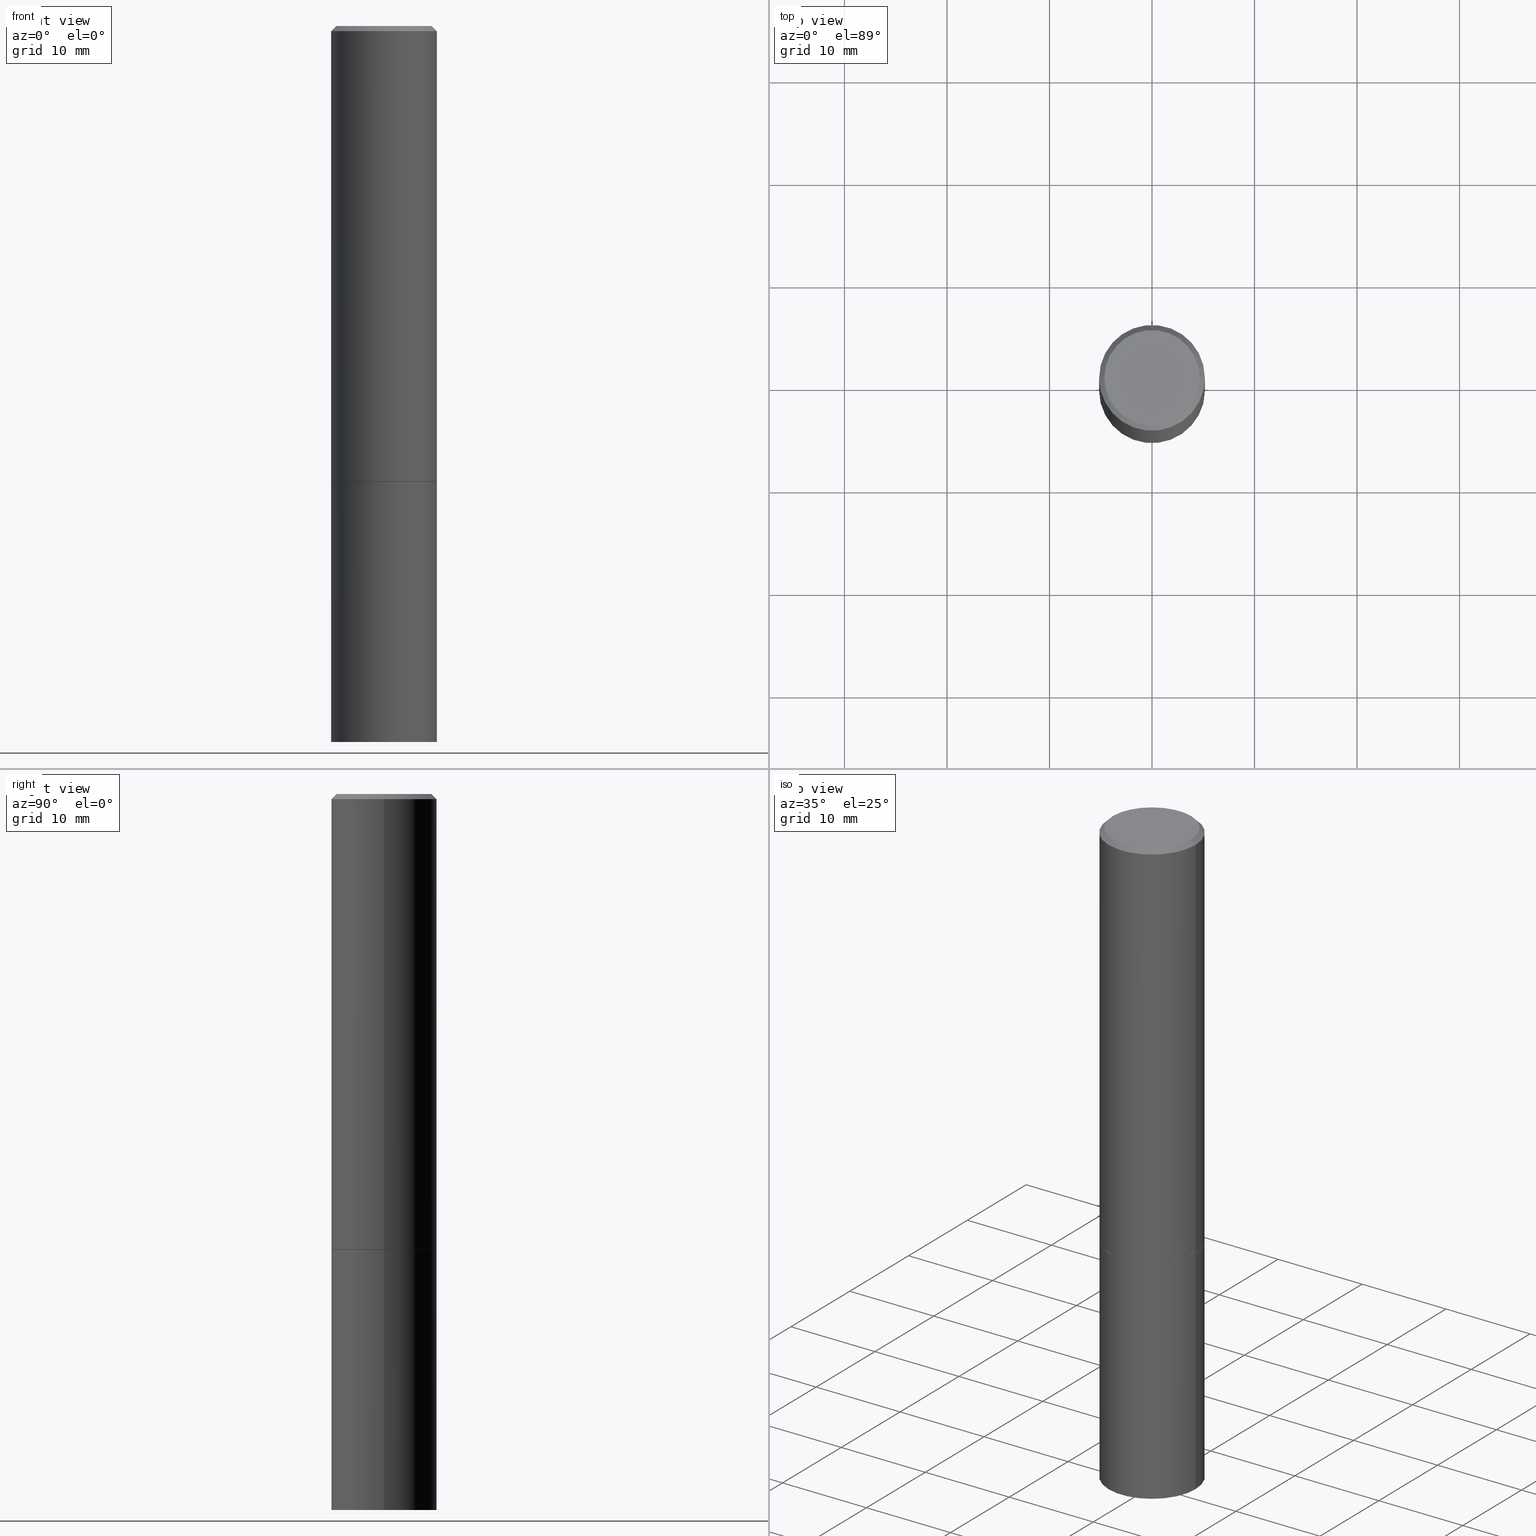
[diagram: canonical four-view strip — front | top / right | iso, engineering-drawing reading convention]
A machine part, canonical four-view strip (front | top / right | iso — engineering-drawing reading convention). The complete STEP part file that produces these views, byte-faithful:
ISO-10303-21;
HEADER;
FILE_DESCRIPTION (( 'STEP AP203' ),
    '1' );
FILE_NAME ('30016.STEP',
    '2023-03-21T20:20:45',
    ( '' ),
    ( '' ),
    'SwSTEP 2.0',
    'SolidWorks 2022',
    '' );
FILE_SCHEMA (( 'CONFIG_CONTROL_DESIGN' ));
ENDSEC;

DATA;
#1 = DIRECTION ( 'NONE',  ( 1.000000000000000000, 0.000000000000000000, 0.000000000000000000 ) ) ;
#2 = APPROVAL_PERSON_ORGANIZATION ( #140, #378, #333 ) ;
#3 = CONICAL_SURFACE ( 'NONE', #215, 751.2258538476739886, 1.518436449235074148 ) ;
#4 = DIRECTION ( 'NONE',  ( 1.000000000000000000, -6.982962677686269077E-15, 0.000000000000000000 ) ) ;
#5 = PERSON_AND_ORGANIZATION_ROLE ( 'design_owner' ) ;
#6 = DATE_AND_TIME ( #283, #125 ) ;
#7 = CIRCLE ( 'NONE', #346, 0.2021000000000000019 ) ;
#8 = COORDINATED_UNIVERSAL_TIME_OFFSET ( 5, 0, .BEHIND. ) ;
#9 = ORIENTED_EDGE ( 'NONE', *, *, #135, .F. ) ;
#10 = ORIENTED_EDGE ( 'NONE', *, *, #214, .T. ) ;
#11 = DATE_TIME_ROLE ( 'classification_date' ) ;
#12 = DIRECTION ( 'NONE',  ( -2.445468806185136597E-29, 3.491481338843145583E-15, 1.000000000000000000 ) ) ;
#13 = CARTESIAN_POINT ( 'NONE',  ( -0.2031000000000000028, -6.412720716068313768E-15, -1.750000000000000000 ) ) ;
#14 = AXIS2_PLACEMENT_3D ( 'NONE', #183, #245, #27 ) ;
#15 = AXIS2_PLACEMENT_3D ( 'NONE', #44, #12, #175 ) ;
#16 = CARTESIAN_POINT ( 'NONE',  ( -0.2021000000000000019, -4.668787019656119386E-15, -1.750000000000000222 ) ) ;
#17 = VERTEX_POINT ( 'NONE', #365 ) ;
#18 = DATE_AND_TIME ( #287, #285 ) ;
#19 = LINE ( 'NONE', #141, #278 ) ;
#20 = ORIENTED_EDGE ( 'NONE', *, *, #268, .T. ) ;
#21 = CYLINDRICAL_SURFACE ( 'NONE', #15, 0.2031000000000000028 ) ;
#22 = CARTESIAN_POINT ( 'NONE',  ( 6.725039217009124520E-29, -9.601573681818649859E-15, -2.750000000000000000 ) ) ;
#23 = ADVANCED_FACE ( 'NONE', ( #119 ), #301, .F. ) ;
#24 = CIRCLE ( 'NONE', #154, 0.2031000000000000028 ) ;
#25 = DIRECTION ( 'NONE',  ( 0.9986295347545742773, -7.033825938271997912E-15, -0.05233595624293643084 ) ) ;
#26 = ADVANCED_FACE ( 'NONE', ( #216 ), #185, .T. ) ;
#27 = DIRECTION ( 'NONE',  ( -1.000000000000000000, 6.982962677686266711E-15, 0.000000000000000000 ) ) ;
#28 = DIRECTION ( 'NONE',  ( -0.7071067811864267805, 7.493145998869918709E-15, 0.7071067811866682540 ) ) ;
#29 = DIRECTION ( 'NONE',  ( -2.445468806185136877E-29, 3.491481338843145188E-15, 1.000000000000000000 ) ) ;
#30 = LINE ( 'NONE', #160, #228 ) ;
#31 = DIRECTION ( 'NONE',  ( -2.445468806185136597E-29, 3.491481338843145583E-15, 1.000000000000000000 ) ) ;
#32 = AXIS2_PLACEMENT_3D ( 'NONE', #70, #321, #171 ) ;
#33 =( NAMED_UNIT ( * ) SI_UNIT ( $, .STERADIAN. ) SOLID_ANGLE_UNIT ( ) );
#34 = FACE_OUTER_BOUND ( 'NONE', #50, .T. ) ;
#35 = EDGE_LOOP ( 'NONE', ( #194, #10, #325, #234 ) ) ;
#36 = CYLINDRICAL_SURFACE ( 'NONE', #222, 0.2030999999999999195 ) ;
#37 = APPROVAL ( #315, 'UNSPECIFIED' ) ;
#38 = ORIENTED_EDGE ( 'NONE', *, *, #223, .T. ) ;
#39 = SECURITY_CLASSIFICATION_LEVEL ( 'unclassified' ) ;
#40 = ORIENTED_EDGE ( 'NONE', *, *, #387, .T. ) ;
#41 = DATE_AND_TIME ( #170, #145 ) ;
#42 = EDGE_LOOP ( 'NONE', ( #357, #199, #259, #349 ) ) ;
#43 = PERSON_AND_ORGANIZATION_ROLE ( 'classification_officer' ) ;
#44 = CARTESIAN_POINT ( 'NONE',  ( 0.000000000000000000, 0.000000000000000000, 0.000000000000000000 ) ) ;
#45 = DIRECTION ( 'NONE',  ( 2.445468806185136597E-29, -3.491481338843145583E-15, -1.000000000000000000 ) ) ;
#46 = DIRECTION ( 'NONE',  ( 0.7071067811864267805, -2.468850131080992517E-15, 0.7071067811866682540 ) ) ;
#47 = VECTOR ( 'NONE', #25, 39.37007874015748143 ) ;
#48 = AXIS2_PLACEMENT_3D ( 'NONE', #343, #67, #248 ) ;
#49 = DIRECTION ( 'NONE',  ( 1.000000000000000000, -6.982962677686269866E-15, 0.000000000000000000 ) ) ;
#50 = EDGE_LOOP ( 'NONE', ( #318, #166, #348, #142 ) ) ;
#51 = APPROVAL_DATE_TIME ( #6, #37 ) ;
#52 = EDGE_LOOP ( 'NONE', ( #9, #279, #329 ) ) ;
#53 = DIRECTION ( 'NONE',  ( 1.000000000000000000, -6.982962677686266711E-15, 0.000000000000000000 ) ) ;
#54 = CC_DESIGN_DATE_AND_TIME_ASSIGNMENT ( #377, #326, ( #311 ) ) ;
#55 = LINE ( 'NONE', #179, #47 ) ;
#56 = ADVANCED_FACE ( 'NONE', ( #88 ), #243, .T. ) ;
#57 = CIRCLE ( 'NONE', #250, 0.2031000000000000028 ) ;
#58 = LINE ( 'NONE', #156, #389 ) ;
#59 = ADVANCED_BREP_SHAPE_REPRESENTATION ( '30016', ( #117, #246, #358 ), #79 ) ;
#60 = DIRECTION ( 'NONE',  ( 1.000000000000000000, -6.982962677686265922E-15, 4.876176775795935793E-29 ) ) ;
#61 = DIRECTION ( 'NONE',  ( -1.000000000000000000, 6.982962677686265922E-15, -4.876176775795935793E-29 ) ) ;
#62 = DIRECTION ( 'NONE',  ( 1.000000000000000000, -6.982962677686265922E-15, 4.876176775795935793E-29 ) ) ;
#63 = ADVANCED_FACE ( 'NONE', ( #366 ), #92, .T. ) ;
#64 = EDGE_CURVE ( 'NONE', #256, #201, #7, .T. ) ;
#65 = DIRECTION ( 'NONE',  ( -2.445468806185136597E-29, 3.491481338843145583E-15, 1.000000000000000000 ) ) ;
#66 = VECTOR ( 'NONE', #46, 39.37007874015748143 ) ;
#67 = DIRECTION ( 'NONE',  ( -2.445468806185136597E-29, 3.491481338843145583E-15, 1.000000000000000000 ) ) ;
#68 = ORIENTED_EDGE ( 'NONE', *, *, #155, .F. ) ;
#69 = FACE_OUTER_BOUND ( 'NONE', #52, .T. ) ;
#70 = CARTESIAN_POINT ( 'NONE',  ( 0.000000000000000000, 0.000000000000000000, 0.000000000000000000 ) ) ;
#71 = ORIENTED_EDGE ( 'NONE', *, *, #254, .F. ) ;
#72 = APPROVAL_DATE_TIME ( #18, #298 ) ;
#73 = EDGE_LOOP ( 'NONE', ( #38, #252, #230, #133 ) ) ;
#74 = ORIENTED_EDGE ( 'NONE', *, *, #85, .F. ) ;
#75 = COORDINATED_UNIVERSAL_TIME_OFFSET ( 5, 0, .BEHIND. ) ;
#76 = CARTESIAN_POINT ( 'NONE',  ( 0.2021000000000000019, -7.521349100135901010E-15, -1.750000000000000222 ) ) ;
#77 = CARTESIAN_POINT ( 'NONE',  ( -0.1830999999999998185, 1.313495279672785236E-15, -9.063697641761069382E-30 ) ) ;
#78 = DIRECTION ( 'NONE',  ( -2.445468806185136597E-29, 3.491481338843145583E-15, 1.000000000000000000 ) ) ;
#79 =( GEOMETRIC_REPRESENTATION_CONTEXT ( 3 ) GLOBAL_UNCERTAINTY_ASSIGNED_CONTEXT ( ( #295 ) ) GLOBAL_UNIT_ASSIGNED_CONTEXT ( ( #272, #105, #33 ) ) REPRESENTATION_CONTEXT ( 'NONE', 'WORKASPACE' ) );
#80 = PERSON_AND_ORGANIZATION ( #143, #266 ) ;
#81 = ADVANCED_FACE ( 'NONE', ( #210 ), #337, .F. ) ;
#82 = VECTOR ( 'NONE', #330, 39.37007874015748143 ) ;
#83 = ORIENTED_EDGE ( 'NONE', *, *, #269, .F. ) ;
#84 = CARTESIAN_POINT ( 'NONE',  ( 6.725039217009124520E-29, -9.601573681818649859E-15, -2.750000000000000000 ) ) ;
#85 = EDGE_CURVE ( 'NONE', #256, #237, #186, .T. ) ;
#86 = DIRECTION ( 'NONE',  ( -1.000000000000000000, 6.982962677686266711E-15, 0.000000000000000000 ) ) ;
#87 = DIRECTION ( 'NONE',  ( -2.445468806185136877E-29, 3.491481338843145188E-15, 1.000000000000000000 ) ) ;
#88 = FACE_OUTER_BOUND ( 'NONE', #354, .T. ) ;
#89 = CIRCLE ( 'NONE', #331, 0.2031000000000000028 ) ;
#90 = CARTESIAN_POINT ( 'NONE',  ( 4.279570410823989044E-29, -6.110092342975505460E-15, -1.750000000000000222 ) ) ;
#91 = CARTESIAN_POINT ( 'NONE',  ( 4.279570410823988484E-29, -6.110092342975504671E-15, -1.750000000000000000 ) ) ;
#92 = CYLINDRICAL_SURFACE ( 'NONE', #307, 0.2031000000000000028 ) ;
#93 = CARTESIAN_POINT ( 'NONE',  ( 0.000000000000000000, 0.000000000000000000, 0.000000000000000000 ) ) ;
#94 = CARTESIAN_POINT ( 'NONE',  ( 1.278580466284353982E-15, 0.1830999999999998185, -6.392902331421793574E-16 ) ) ;
#95 = PLANE ( 'NONE',  #302 ) ;
#96 = LOCAL_TIME ( 16, 20, 45.00000000000000000, #226 ) ;
#97 = DIRECTION ( 'NONE',  ( 1.000000000000000000, -6.982962677686269866E-15, 0.000000000000000000 ) ) ;
#98 = CLOSED_SHELL ( 'NONE', ( #313, #253, #26, #102, #344, #56, #23, #81 ) ) ;
#99 = EDGE_CURVE ( 'NONE', #361, #319, #58, .T. ) ;
#100 = LENGTH_MEASURE_WITH_UNIT ( LENGTH_MEASURE( 0.02539999999999999897 ), #371 );
#101 = PRODUCT_RELATED_PRODUCT_CATEGORY ( 'detail', '', ( #132 ) ) ;
#102 = ADVANCED_FACE ( 'NONE', ( #390 ), #374, .T. ) ;
#103 = CARTESIAN_POINT ( 'NONE',  ( 4.279570410823988484E-29, -6.110092342975504671E-15, -1.750000000000000000 ) ) ;
#104 = EDGE_LOOP ( 'NONE', ( #68, #263, #386, #297 ) ) ;
#105 =( NAMED_UNIT ( * ) PLANE_ANGLE_UNIT ( ) SI_UNIT ( $, .RADIAN. ) );
#106 = VECTOR ( 'NONE', #87, 39.37007874015748143 ) ;
#107 = CARTESIAN_POINT ( 'NONE',  ( 0.000000000000000000, 0.000000000000000000, 0.000000000000000000 ) ) ;
#108 = DIRECTION ( 'NONE',  ( 1.000000000000000000, -6.982962677686265922E-15, 4.876176775795935793E-29 ) ) ;
#109 = ORIENTED_EDGE ( 'NONE', *, *, #328, .F. ) ;
#110 = AXIS2_PLACEMENT_3D ( 'NONE', #362, #382, #53 ) ;
#111 = EDGE_LOOP ( 'NONE', ( #71, #40, #225, #288 ) ) ;
#112 = EDGE_LOOP ( 'NONE', ( #376, #383, #168, #332 ) ) ;
#113 = PERSON_AND_ORGANIZATION_ROLE ( 'creator' ) ;
#114 = CC_DESIGN_APPROVAL ( #298, ( #184 ) ) ;
#115 = CC_DESIGN_PERSON_AND_ORGANIZATION_ASSIGNMENT ( #196, #43, ( #320 ) ) ;
#116 = VERTEX_POINT ( 'NONE', #335 ) ;
#117 = MANIFOLD_SOLID_BREP ( 'Body-Move/Copy2[1]', #261 ) ;
#118 = AXIS2_PLACEMENT_3D ( 'NONE', #103, #369, #97 ) ;
#119 = FACE_OUTER_BOUND ( 'NONE', #172, .T. ) ;
#120 = CYLINDRICAL_SURFACE ( 'NONE', #316, 0.2030999999999999195 ) ;
#121 = CARTESIAN_POINT ( 'NONE',  ( 4.279570410823989044E-29, -6.110092342975505460E-15, -1.750000000000000222 ) ) ;
#122 = DIRECTION ( 'NONE',  ( 0.000000000000000000, 0.000000000000000000, 1.000000000000000000 ) ) ;
#123 = CARTESIAN_POINT ( 'NONE',  ( 0.000000000000000000, 0.000000000000000000, 0.000000000000000000 ) ) ;
#124 = CC_DESIGN_PERSON_AND_ORGANIZATION_ASSIGNMENT ( #189, #5, ( #132 ) ) ;
#125 = LOCAL_TIME ( 16, 20, 45.00000000000000000, #255 ) ;
#126 = APPLICATION_PROTOCOL_DEFINITION ( 'international standard', 'config_control_design', 1994, #236 ) ;
#127 = VECTOR ( 'NONE', #29, 39.37007874015748143 ) ;
#128 = APPLICATION_PROTOCOL_DEFINITION ( 'international standard', 'config_control_design', 1994, #336 ) ;
#129 = CARTESIAN_POINT ( 'NONE',  ( 4.279570410823989044E-29, -6.110092342975505460E-15, -1.750000000000000222 ) ) ;
#130 = ORIENTED_EDGE ( 'NONE', *, *, #270, .F. ) ;
#131 = CARTESIAN_POINT ( 'NONE',  ( 0.2030999999999998085, -1.463196770124259971E-15, -0.02000000000000004552 ) ) ;
#132 = PRODUCT ( '30016', '30016', '', ( #220 ) ) ;
#133 = ORIENTED_EDGE ( 'NONE', *, *, #99, .F. ) ;
#134 = DIRECTION ( 'NONE',  ( -2.445468806185136597E-29, 3.491481338843145583E-15, 1.000000000000000000 ) ) ;
#135 = EDGE_CURVE ( 'NONE', #136, #361, #55, .T. ) ;
#136 = VERTEX_POINT ( 'NONE', #304 ) ;
#137 = APPROVAL_DATE_TIME ( #205, #378 ) ;
#138 = ORIENTED_EDGE ( 'NONE', *, *, #167, .F. ) ;
#139 = AXIS2_PLACEMENT_3D ( 'NONE', #84, #303, #229 ) ;
#140 = PERSON_AND_ORGANIZATION ( #143, #266 ) ;
#141 = CARTESIAN_POINT ( 'NONE',  ( -4.871854198842910760E-19, -9.564410284714797883E-15, -2.739355980027615711 ) ) ;
#142 = ORIENTED_EDGE ( 'NONE', *, *, #211, .F. ) ;
#143 = PERSON ( 'UNSPECIFIED', 'UNSPECIFIED', 'UNSPECIFIED', ('UNSPECIFIED'), ('UNSPECIFIED'), ('UNSPECIFIED') ) ;
#144 = ORIENTED_EDGE ( 'NONE', *, *, #135, .T. ) ;
#145 = LOCAL_TIME ( 16, 20, 45.00000000000000000, #75 ) ;
#146 = DESIGN_CONTEXT ( 'detailed design', #336, 'design' ) ;
#147 = DIRECTION ( 'NONE',  ( -2.445468806185136597E-29, 3.491481338843145583E-15, 1.000000000000000000 ) ) ;
#148 = CIRCLE ( 'NONE', #32, 0.1830999999999998185 ) ;
#149 = DIRECTION ( 'NONE',  ( -2.445468806185136597E-29, 3.491481338843145583E-15, 1.000000000000000000 ) ) ;
#150 = DIRECTION ( 'NONE',  ( 2.438088387897960049E-29, -3.491481338843145188E-15, -1.000000000000000000 ) ) ;
#151 = CARTESIAN_POINT ( 'NONE',  ( 0.000000000000000000, 0.000000000000000000, 0.000000000000000000 ) ) ;
#152 = DIRECTION ( 'NONE',  ( 1.000000000000000000, -6.982962677686269077E-15, 0.000000000000000000 ) ) ;
#153 = VECTOR ( 'NONE', #28, 39.37007874015748143 ) ;
#154 = AXIS2_PLACEMENT_3D ( 'NONE', #249, #224, #165 ) ;
#155 = EDGE_CURVE ( 'NONE', #116, #206, #235, .T. ) ;
#156 = CARTESIAN_POINT ( 'NONE',  ( 0.2031000000000000028, -1.418239719838080775E-15, 9.903515031641546145E-30 ) ) ;
#157 = FACE_OUTER_BOUND ( 'NONE', #176, .T. ) ;
#158 = DIRECTION ( 'NONE',  ( 0.7071067811865465735, -7.319954787623252890E-15, -0.7071067811865484609 ) ) ;
#159 = ADVANCED_FACE ( 'NONE', ( #384 ), #3, .F. ) ;
#160 = CARTESIAN_POINT ( 'NONE',  ( -0.2030999999999998085, 1.348410093061216294E-15, -0.02000000000000004552 ) ) ;
#161 = FACE_OUTER_BOUND ( 'NONE', #112, .T. ) ;
#162 = LINE ( 'NONE', #131, #352 ) ;
#163 = CIRCLE ( 'NONE', #262, 0.2021000000000000019 ) ;
#164 = APPROVAL_ROLE ( '' ) ;
#165 = DIRECTION ( 'NONE',  ( 1.000000000000000000, -6.982962677686264344E-15, 0.000000000000000000 ) ) ;
#166 = ORIENTED_EDGE ( 'NONE', *, *, #270, .T. ) ;
#167 = EDGE_CURVE ( 'NONE', #116, #361, #286, .T. ) ;
#168 = ORIENTED_EDGE ( 'NONE', *, *, #355, .F. ) ;
#169 = CC_DESIGN_DATE_AND_TIME_ASSIGNMENT ( #41, #11, ( #320 ) ) ;
#170 = CALENDAR_DATE ( 2023, 21, 3 ) ;
#171 = DIRECTION ( 'NONE',  ( 1.000000000000000000, -6.982962677686266711E-15, 4.876176775795935793E-29 ) ) ;
#172 = EDGE_LOOP ( 'NONE', ( #109, #265 ) ) ;
#173 = AXIS2_PLACEMENT_3D ( 'NONE', #94, #218, #61 ) ;
#174 = CIRCLE ( 'NONE', #110, 0.2030999999999998085 ) ;
#175 = DIRECTION ( 'NONE',  ( 1.000000000000000000, -6.982962677686266711E-15, 4.876176775795935793E-29 ) ) ;
#176 = EDGE_LOOP ( 'NONE', ( #312, #20 ) ) ;
#177 = PERSON_AND_ORGANIZATION ( #143, #266 ) ;
#178 = LINE ( 'NONE', #299, #106 ) ;
#179 = CARTESIAN_POINT ( 'NONE',  ( 4.871854200182712814E-19, -9.564410284714797883E-15, -2.739355980027615711 ) ) ;
#180 = AXIS2_PLACEMENT_3D ( 'NONE', #151, #31, #375 ) ;
#181 = DIRECTION ( 'NONE',  ( 2.445468806185136597E-29, -3.491481338843145583E-15, -1.000000000000000000 ) ) ;
#182 = DIRECTION ( 'NONE',  ( -2.445468806185136597E-29, 3.491481338843145583E-15, 1.000000000000000000 ) ) ;
#183 = CARTESIAN_POINT ( 'NONE',  ( 4.890937612370284544E-31, -6.982962677686307633E-17, -0.02000000000000004552 ) ) ;
#184 = PRODUCT_DEFINITION_FORMATION_WITH_SPECIFIED_SOURCE ( 'ANY', '', #132, .NOT_KNOWN. ) ;
#185 = CONICAL_SURFACE ( 'NONE', #14, 0.2030999999999998085, 0.7853981633974469467 ) ;
#186 = LINE ( 'NONE', #308, #153 ) ;
#187 = DIRECTION ( 'NONE',  ( 2.445468806185136597E-29, -3.491481338843145583E-15, -1.000000000000000000 ) ) ;
#188 = VERTEX_POINT ( 'NONE', #327 ) ;
#189 = PERSON_AND_ORGANIZATION ( #143, #266 ) ;
#190 = CARTESIAN_POINT ( 'NONE',  ( 0.2031000000000000028, -7.528332062813585446E-15, -1.750000000000000000 ) ) ;
#191 = PERSON_AND_ORGANIZATION ( #143, #266 ) ;
#192 = CONICAL_SURFACE ( 'NONE', #198, 0.2021000000000000019, 0.7853981633972775267 ) ;
#193 = DIRECTION ( 'NONE',  ( -1.000000000000000000, 6.982962677686266711E-15, 0.000000000000000000 ) ) ;
#194 = ORIENTED_EDGE ( 'NONE', *, *, #355, .T. ) ;
#195 = LINE ( 'NONE', #280, #127 ) ;
#196 = PERSON_AND_ORGANIZATION ( #143, #266 ) ;
#197 = EDGE_CURVE ( 'NONE', #201, #17, #360, .T. ) ;
#198 = AXIS2_PLACEMENT_3D ( 'NONE', #273, #65, #4 ) ;
#199 = ORIENTED_EDGE ( 'NONE', *, *, #341, .F. ) ;
#200 = CARTESIAN_POINT ( 'NONE',  ( -0.2030999999999998085, 1.348410093061216294E-15, -0.02000000000000004552 ) ) ;
#201 = VERTEX_POINT ( 'NONE', #209 ) ;
#202 = DIRECTION ( 'NONE',  ( -1.000000000000000000, 6.982962677686266711E-15, 0.000000000000000000 ) ) ;
#203 = EDGE_LOOP ( 'NONE', ( #334, #267 ) ) ;
#204 = CARTESIAN_POINT ( 'NONE',  ( -0.2031000000000000028, 1.443112296328763497E-15, -9.990357168307714203E-30 ) ) ;
#205 = DATE_AND_TIME ( #233, #345 ) ;
#206 = VERTEX_POINT ( 'NONE', #13 ) ;
#207 = COORDINATED_UNIVERSAL_TIME_OFFSET ( 5, 0, .BEHIND. ) ;
#208 = ORIENTED_EDGE ( 'NONE', *, *, #64, .T. ) ;
#209 = CARTESIAN_POINT ( 'NONE',  ( 0.2021000000000000019, -7.521349100135901010E-15, -1.750000000000000222 ) ) ;
#210 = FACE_OUTER_BOUND ( 'NONE', #203, .T. ) ;
#211 = EDGE_CURVE ( 'NONE', #275, #188, #174, .T. ) ;
#212 = DIRECTION ( 'NONE',  ( -2.445468806185136597E-29, 3.491481338843145583E-15, 1.000000000000000000 ) ) ;
#213 = DIRECTION ( 'NONE',  ( -0.9986295347545742773, 6.790662755453668466E-15, -0.05233595624293643084 ) ) ;
#214 = EDGE_CURVE ( 'NONE', #237, #275, #178, .T. ) ;
#215 = AXIS2_PLACEMENT_3D ( 'NONE', #290, #45, #202 ) ;
#216 = FACE_OUTER_BOUND ( 'NONE', #111, .T. ) ;
#217 = DIRECTION ( 'NONE',  ( -2.445468806185136597E-29, 3.491481338843145583E-15, 1.000000000000000000 ) ) ;
#218 = DIRECTION ( 'NONE',  ( 2.438088387897960049E-29, -3.491481338843145188E-15, -1.000000000000000000 ) ) ;
#219 = CARTESIAN_POINT ( 'NONE',  ( 1.418239719838123571E-15, 0.2030999999999938965, -1.750000000000000666 ) ) ;
#220 = MECHANICAL_CONTEXT ( 'NONE', #236, 'mechanical' ) ;
#221 = CC_DESIGN_SECURITY_CLASSIFICATION ( #320, ( #184 ) ) ;
#222 = AXIS2_PLACEMENT_3D ( 'NONE', #107, #251, #62 ) ;
#223 = EDGE_CURVE ( 'NONE', #361, #116, #57, .T. ) ;
#224 = DIRECTION ( 'NONE',  ( -2.445468806185136597E-29, 3.491481338843145583E-15, 1.000000000000000000 ) ) ;
#225 = ORIENTED_EDGE ( 'NONE', *, *, #351, .T. ) ;
#226 = COORDINATED_UNIVERSAL_TIME_OFFSET ( 5, 0, .BEHIND. ) ;
#227 = AXIS2_PLACEMENT_3D ( 'NONE', #90, #241, #60 ) ;
#228 = VECTOR ( 'NONE', #277, 39.37007874015748143 ) ;
#229 = DIRECTION ( 'NONE',  ( 1.000000000000000000, -6.982962677686264344E-15, 0.000000000000000000 ) ) ;
#230 = ORIENTED_EDGE ( 'NONE', *, *, #342, .F. ) ;
#231 = APPROVAL_STATUS ( 'not_yet_approved' ) ;
#232 = VERTEX_POINT ( 'NONE', #77 ) ;
#233 = CALENDAR_DATE ( 2023, 21, 3 ) ;
#234 = ORIENTED_EDGE ( 'NONE', *, *, #379, .F. ) ;
#235 = LINE ( 'NONE', #204, #82 ) ;
#236 = APPLICATION_CONTEXT ( 'configuration controlled 3d designs of mechanical parts and assemblies' ) ;
#237 = VERTEX_POINT ( 'NONE', #324 ) ;
#238 = EDGE_CURVE ( 'NONE', #232, #275, #30, .T. ) ;
#239 = FACE_OUTER_BOUND ( 'NONE', #73, .T. ) ;
#240 = CC_DESIGN_PERSON_AND_ORGANIZATION_ASSIGNMENT ( #258, #113, ( #311 ) ) ;
#241 = DIRECTION ( 'NONE',  ( -2.438088387897960049E-29, 3.491481338843145188E-15, 1.000000000000000000 ) ) ;
#242 = DIRECTION ( 'NONE',  ( 1.000000000000000000, -6.982962677686264344E-15, 0.000000000000000000 ) ) ;
#243 = CONICAL_SURFACE ( 'NONE', #292, 0.2021000000000000019, 0.7853981633972775267 ) ;
#244 = CIRCLE ( 'NONE', #118, 0.2031000000000000028 ) ;
#245 = DIRECTION ( 'NONE',  ( 2.445468806185136597E-29, -3.491481338843145583E-15, -1.000000000000000000 ) ) ;
#246 = MANIFOLD_SOLID_BREP ( 'Body-Move/Copy2[2]', #98 ) ;
#247 = CARTESIAN_POINT ( 'NONE',  ( 0.1830999999999998185, -1.359676976758112991E-15, 9.224940175330597298E-30 ) ) ;
#248 = DIRECTION ( 'NONE',  ( 1.000000000000000000, -6.982962677686266711E-15, 0.000000000000000000 ) ) ;
#249 = CARTESIAN_POINT ( 'NONE',  ( 4.277124942017804002E-29, -6.106600861636660875E-15, -1.748999999999999888 ) ) ;
#250 = AXIS2_PLACEMENT_3D ( 'NONE', #22, #147, #260 ) ;
#251 = DIRECTION ( 'NONE',  ( -2.445468806185136597E-29, 3.491481338843145583E-15, 1.000000000000000000 ) ) ;
#252 = ORIENTED_EDGE ( 'NONE', *, *, #155, .T. ) ;
#253 = ADVANCED_FACE ( 'NONE', ( #281 ), #120, .T. ) ;
#254 = EDGE_CURVE ( 'NONE', #294, #232, #148, .T. ) ;
#255 = COORDINATED_UNIVERSAL_TIME_OFFSET ( 5, 0, .BEHIND. ) ;
#256 = VERTEX_POINT ( 'NONE', #16 ) ;
#257 = APPROVAL_ROLE ( '' ) ;
#258 = PERSON_AND_ORGANIZATION ( #143, #266 ) ;
#259 = ORIENTED_EDGE ( 'NONE', *, *, #238, .T. ) ;
#260 = DIRECTION ( 'NONE',  ( 1.000000000000000000, -6.982962677686264344E-15, 0.000000000000000000 ) ) ;
#261 = CLOSED_SHELL ( 'NONE', ( #274, #159, #353, #63, #309 ) ) ;
#262 = AXIS2_PLACEMENT_3D ( 'NONE', #129, #380, #282 ) ;
#263 = ORIENTED_EDGE ( 'NONE', *, *, #167, .T. ) ;
#264 = PERSON_AND_ORGANIZATION ( #143, #266 ) ;
#265 = ORIENTED_EDGE ( 'NONE', *, *, #64, .F. ) ;
#266 = ORGANIZATION ( 'UNSPECIFIED', 'UNSPECIFIED', '' ) ;
#267 = ORIENTED_EDGE ( 'NONE', *, *, #254, .T. ) ;
#268 = EDGE_CURVE ( 'NONE', #206, #319, #89, .T. ) ;
#269 = EDGE_CURVE ( 'NONE', #136, #116, #19, .T. ) ;
#270 = EDGE_CURVE ( 'NONE', #237, #17, #338, .T. ) ;
#271 = DIRECTION ( 'NONE',  ( -2.445468806185136877E-29, 3.491481338843145188E-15, 1.000000000000000000 ) ) ;
#272 =( CONVERSION_BASED_UNIT ( 'INCH', #100 ) LENGTH_UNIT ( ) NAMED_UNIT ( #305 ) );
#273 = CARTESIAN_POINT ( 'NONE',  ( 4.279570410823989044E-29, -6.110092342975505460E-15, -1.750000000000000222 ) ) ;
#274 = ADVANCED_FACE ( 'NONE', ( #239 ), #21, .T. ) ;
#275 = VERTEX_POINT ( 'NONE', #200 ) ;
#276 = CC_DESIGN_PERSON_AND_ORGANIZATION_ASSIGNMENT ( #177, #289, ( #184 ) ) ;
#277 = DIRECTION ( 'NONE',  ( -0.7071067811865465735, 2.468850131082246805E-15, -0.7071067811865484609 ) ) ;
#278 = VECTOR ( 'NONE', #213, 39.37007874015748143 ) ;
#279 = ORIENTED_EDGE ( 'NONE', *, *, #269, .T. ) ;
#280 = CARTESIAN_POINT ( 'NONE',  ( 0.2030999999999999195, -1.418239719838079986E-15, 9.903515031641541941E-30 ) ) ;
#281 = FACE_OUTER_BOUND ( 'NONE', #35, .T. ) ;
#282 = DIRECTION ( 'NONE',  ( 1.000000000000000000, -6.982962677686269077E-15, 0.000000000000000000 ) ) ;
#283 = CALENDAR_DATE ( 2023, 21, 3 ) ;
#284 = PRODUCT_DEFINITION_SHAPE ( 'NONE', 'NONE',  #311 ) ;
#285 = LOCAL_TIME ( 16, 20, 45.00000000000000000, #207 ) ;
#286 = CIRCLE ( 'NONE', #139, 0.2031000000000000028 ) ;
#287 = CALENDAR_DATE ( 2023, 21, 3 ) ;
#288 = ORIENTED_EDGE ( 'NONE', *, *, #238, .F. ) ;
#289 = PERSON_AND_ORGANIZATION_ROLE ( 'creator' ) ;
#290 = CARTESIAN_POINT ( 'NONE',  ( 1.029773090543019914E-27, -1.470243055147599021E-13, -42.10943472018509937 ) ) ;
#291 = CC_DESIGN_APPROVAL ( #37, ( #311 ) ) ;
#292 = AXIS2_PLACEMENT_3D ( 'NONE', #339, #212, #152 ) ;
#293 = AXIS2_PLACEMENT_3D ( 'NONE', #364, #182, #242 ) ;
#294 = VERTEX_POINT ( 'NONE', #247 ) ;
#295 = UNCERTAINTY_MEASURE_WITH_UNIT (LENGTH_MEASURE( 1.000000000000000082E-05 ), #272, 'distance_accuracy_value', 'NONE');
#296 = PERSON_AND_ORGANIZATION_ROLE ( 'design_supplier' ) ;
#297 = ORIENTED_EDGE ( 'NONE', *, *, #268, .F. ) ;
#298 = APPROVAL ( #385, 'UNSPECIFIED' ) ;
#299 = CARTESIAN_POINT ( 'NONE',  ( -0.2030999999999999195, 1.443112296328762905E-15, -9.990357168307709999E-30 ) ) ;
#300 = APPROVAL_PERSON_ORGANIZATION ( #264, #298, #257 ) ;
#301 = PLANE ( 'NONE',  #227 ) ;
#302 = AXIS2_PLACEMENT_3D ( 'NONE', #219, #150, #317 ) ;
#303 = DIRECTION ( 'NONE',  ( -2.445468806185136597E-29, 3.491481338843145583E-15, 1.000000000000000000 ) ) ;
#304 = CARTESIAN_POINT ( 'NONE',  ( 6.698669398433785065E-29, -9.564897470134749414E-15, -2.739355980027615711 ) ) ;
#305 = DIMENSIONAL_EXPONENTS ( 1.000000000000000000, 0.000000000000000000, 0.000000000000000000, 0.000000000000000000, 0.000000000000000000, 0.000000000000000000, 0.000000000000000000 ) ;
#306 = DIRECTION ( 'NONE',  ( 1.000000000000000000, -6.982962677686266711E-15, 4.876176775795935793E-29 ) ) ;
#307 = AXIS2_PLACEMENT_3D ( 'NONE', #123, #217, #306 ) ;
#308 = CARTESIAN_POINT ( 'NONE',  ( -0.2021000000000000019, -4.674085474004342577E-15, -1.750000000000000222 ) ) ;
#309 = ADVANCED_FACE ( 'NONE', ( #157 ), #95, .F. ) ;
#310 = CARTESIAN_POINT ( 'NONE',  ( 0.2030999999999997530, -1.099494082516604752E-14, -2.750000000000000000 ) ) ;
#311 = PRODUCT_DEFINITION ( 'UNKNOWN', '', #184, #146 ) ;
#312 = ORIENTED_EDGE ( 'NONE', *, *, #342, .T. ) ;
#313 = ADVANCED_FACE ( 'NONE', ( #161 ), #192, .T. ) ;
#314 = APPROVAL_PERSON_ORGANIZATION ( #191, #37, #164 ) ;
#315 = APPROVAL_STATUS ( 'not_yet_approved' ) ;
#316 = AXIS2_PLACEMENT_3D ( 'NONE', #93, #134, #108 ) ;
#317 = DIRECTION ( 'NONE',  ( -1.000000000000000000, 6.982962677686265922E-15, -4.876176775795935793E-29 ) ) ;
#318 = ORIENTED_EDGE ( 'NONE', *, *, #214, .F. ) ;
#319 = VERTEX_POINT ( 'NONE', #190 ) ;
#320 = SECURITY_CLASSIFICATION ( '', '', #39 ) ;
#321 = DIRECTION ( 'NONE',  ( -2.445468806185136597E-29, 3.491481338843145583E-15, 1.000000000000000000 ) ) ;
#322 = AXIS2_PLACEMENT_3D ( 'NONE', #363, #181, #86 ) ;
#323 = CONICAL_SURFACE ( 'NONE', #370, 751.2258538476739886, 1.518436449235074148 ) ;
#324 = CARTESIAN_POINT ( 'NONE',  ( -0.2031000000000000028, -1.645102947877997012E-15, -1.748999999999999888 ) ) ;
#325 = ORIENTED_EDGE ( 'NONE', *, *, #351, .F. ) ;
#326 = DATE_TIME_ROLE ( 'creation_date' ) ;
#327 = CARTESIAN_POINT ( 'NONE',  ( 0.2030999999999998085, -1.463196770124259971E-15, -0.02000000000000004552 ) ) ;
#328 = EDGE_CURVE ( 'NONE', #201, #256, #163, .T. ) ;
#329 = ORIENTED_EDGE ( 'NONE', *, *, #223, .F. ) ;
#330 = DIRECTION ( 'NONE',  ( -2.445468806185136877E-29, 3.491481338843145188E-15, 1.000000000000000000 ) ) ;
#331 = AXIS2_PLACEMENT_3D ( 'NONE', #91, #78, #49 ) ;
#332 = ORIENTED_EDGE ( 'NONE', *, *, #197, .F. ) ;
#333 = APPROVAL_ROLE ( '' ) ;
#334 = ORIENTED_EDGE ( 'NONE', *, *, #341, .T. ) ;
#335 = CARTESIAN_POINT ( 'NONE',  ( -0.2030999999999997530, -8.183333961980571451E-15, -2.750000000000000000 ) ) ;
#336 = APPLICATION_CONTEXT ( 'configuration controlled 3d designs of mechanical parts and assemblies' ) ;
#337 = PLANE ( 'NONE',  #173 ) ;
#338 = CIRCLE ( 'NONE', #293, 0.2031000000000000028 ) ;
#339 = CARTESIAN_POINT ( 'NONE',  ( 4.279570410823989044E-29, -6.110092342975505460E-15, -1.750000000000000222 ) ) ;
#340 = CARTESIAN_POINT ( 'NONE',  ( 0.000000000000000000, 0.000000000000000000, 0.000000000000000000 ) ) ;
#341 = EDGE_CURVE ( 'NONE', #232, #294, #381, .T. ) ;
#342 = EDGE_CURVE ( 'NONE', #319, #206, #244, .T. ) ;
#343 = CARTESIAN_POINT ( 'NONE',  ( 4.890937612370284544E-31, -6.982962677686307633E-17, -0.02000000000000004552 ) ) ;
#344 = ADVANCED_FACE ( 'NONE', ( #34 ), #36, .T. ) ;
#345 = LOCAL_TIME ( 16, 20, 45.00000000000000000, #8 ) ;
#346 = AXIS2_PLACEMENT_3D ( 'NONE', #121, #149, #367 ) ;
#347 = CIRCLE ( 'NONE', #48, 0.2030999999999998085 ) ;
#348 = ORIENTED_EDGE ( 'NONE', *, *, #379, .T. ) ;
#349 = ORIENTED_EDGE ( 'NONE', *, *, #211, .T. ) ;
#350 = ORIENTED_EDGE ( 'NONE', *, *, #197, .T. ) ;
#351 = EDGE_CURVE ( 'NONE', #188, #275, #347, .T. ) ;
#352 = VECTOR ( 'NONE', #158, 39.37007874015748143 ) ;
#353 = ADVANCED_FACE ( 'NONE', ( #69 ), #323, .F. ) ;
#354 = EDGE_LOOP ( 'NONE', ( #74, #208, #350, #130 ) ) ;
#355 = EDGE_CURVE ( 'NONE', #17, #237, #24, .T. ) ;
#356 = CALENDAR_DATE ( 2023, 21, 3 ) ;
#357 = ORIENTED_EDGE ( 'NONE', *, *, #387, .F. ) ;
#358 = AXIS2_PLACEMENT_3D ( 'NONE', #340, #122, #1 ) ;
#359 = SHAPE_DEFINITION_REPRESENTATION ( #284, #59 ) ;
#360 = LINE ( 'NONE', #76, #66 ) ;
#361 = VERTEX_POINT ( 'NONE', #310 ) ;
#362 = CARTESIAN_POINT ( 'NONE',  ( 4.890937612370284544E-31, -6.982962677686307633E-17, -0.02000000000000004552 ) ) ;
#363 = CARTESIAN_POINT ( 'NONE',  ( 4.890937612370284544E-31, -6.982962677686307633E-17, -0.02000000000000004552 ) ) ;
#364 = CARTESIAN_POINT ( 'NONE',  ( 4.277124942017804002E-29, -6.106600861636660875E-15, -1.748999999999999888 ) ) ;
#365 = CARTESIAN_POINT ( 'NONE',  ( 0.2031000000000000028, -7.524840581474740861E-15, -1.748999999999999888 ) ) ;
#366 = FACE_OUTER_BOUND ( 'NONE', #104, .T. ) ;
#367 = DIRECTION ( 'NONE',  ( 1.000000000000000000, -6.982962677686269077E-15, 0.000000000000000000 ) ) ;
#368 = CC_DESIGN_PERSON_AND_ORGANIZATION_ASSIGNMENT ( #80, #296, ( #184 ) ) ;
#369 = DIRECTION ( 'NONE',  ( -2.445468806185136597E-29, 3.491481338843145583E-15, 1.000000000000000000 ) ) ;
#370 = AXIS2_PLACEMENT_3D ( 'NONE', #372, #187, #193 ) ;
#371 =( LENGTH_UNIT ( ) NAMED_UNIT ( * ) SI_UNIT ( $, .METRE. ) );
#372 = CARTESIAN_POINT ( 'NONE',  ( 1.029773090543019914E-27, -1.470243055147599021E-13, -42.10943472018509937 ) ) ;
#373 = EDGE_LOOP ( 'NONE', ( #83, #144, #138 ) ) ;
#374 = CONICAL_SURFACE ( 'NONE', #322, 0.2030999999999998085, 0.7853981633974469467 ) ;
#375 = DIRECTION ( 'NONE',  ( 1.000000000000000000, -6.982962677686266711E-15, 4.876176775795935793E-29 ) ) ;
#376 = ORIENTED_EDGE ( 'NONE', *, *, #328, .T. ) ;
#377 = DATE_AND_TIME ( #356, #96 ) ;
#378 = APPROVAL ( #231, 'UNSPECIFIED' ) ;
#379 = EDGE_CURVE ( 'NONE', #17, #188, #195, .T. ) ;
#380 = DIRECTION ( 'NONE',  ( -2.445468806185136597E-29, 3.491481338843145583E-15, 1.000000000000000000 ) ) ;
#381 = CIRCLE ( 'NONE', #180, 0.1830999999999998185 ) ;
#382 = DIRECTION ( 'NONE',  ( -2.445468806185136597E-29, 3.491481338843145583E-15, 1.000000000000000000 ) ) ;
#383 = ORIENTED_EDGE ( 'NONE', *, *, #85, .T. ) ;
#384 = FACE_OUTER_BOUND ( 'NONE', #373, .T. ) ;
#385 = APPROVAL_STATUS ( 'not_yet_approved' ) ;
#386 = ORIENTED_EDGE ( 'NONE', *, *, #99, .T. ) ;
#387 = EDGE_CURVE ( 'NONE', #294, #188, #162, .T. ) ;
#388 = CC_DESIGN_APPROVAL ( #378, ( #320 ) ) ;
#389 = VECTOR ( 'NONE', #271, 39.37007874015748143 ) ;
#390 = FACE_OUTER_BOUND ( 'NONE', #42, .T. ) ;
ENDSEC;
END-ISO-10303-21;
